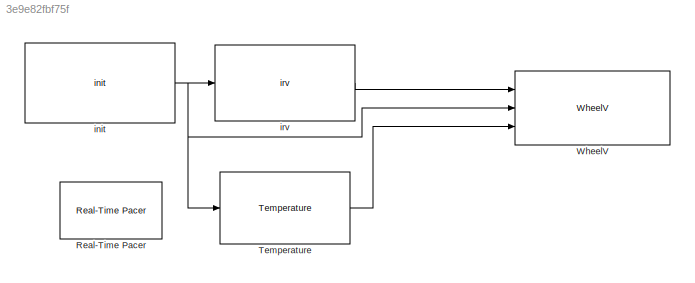
MODEL slx_3e9e82fbf75f
KIND model
CONFIG AbsTol = auto
CONFIG EnableMultiTasking = off
CONFIG FixedStep = auto
CONFIG MaxStep = auto
CONFIG MinStep = auto
CONFIG RelTol = 1e-3
CONFIG SampleTimeConstraint = Unconstrained
CONFIG Solver = VariableStepAuto
CONFIG SolverName = VariableStepAuto
CONFIG StartTime = 0.0
CONFIG StopTime = inf
BLOCK [Reference] Real-Time Pacer  REF=realtime_pacer_lib/Real-Time Pacer
  Ports = []
  SourceBlock = realtime_pacer_lib/Real-Time Pacer
  SourceType = RealTime_Pacer
BLOCK [Reference] Temperature  REF=DigiConLib/Temperature
  Ports = [1, 1]
  SourceBlock = DigiConLib/Temperature
  SourceType = SubSystem
BLOCK [Reference] WheelV  REF=DigiConLib/WheelV
  Ports = [3]
  SourceBlock = DigiConLib/WheelV
  SourceType = SubSystem
BLOCK [Reference] init  REF=DigiConLib/init
  Ports = [0, 1]
  SourceBlock = DigiConLib/init
  SourceType = SubSystem
BLOCK [Reference] irv  REF=DigiConLib/irv
  Ports = [1, 1]
  SourceBlock = DigiConLib/irv
  SourceType = SubSystem
LINE Temperature:1 -> WheelV:3
NET init:1 -> Temperature:1, WheelV:2, irv:1
LINE irv:1 -> WheelV:1
note: NET lines group one-source signal fan-out (src -> all destinations, sorted); 1:1 wires keep LINE
